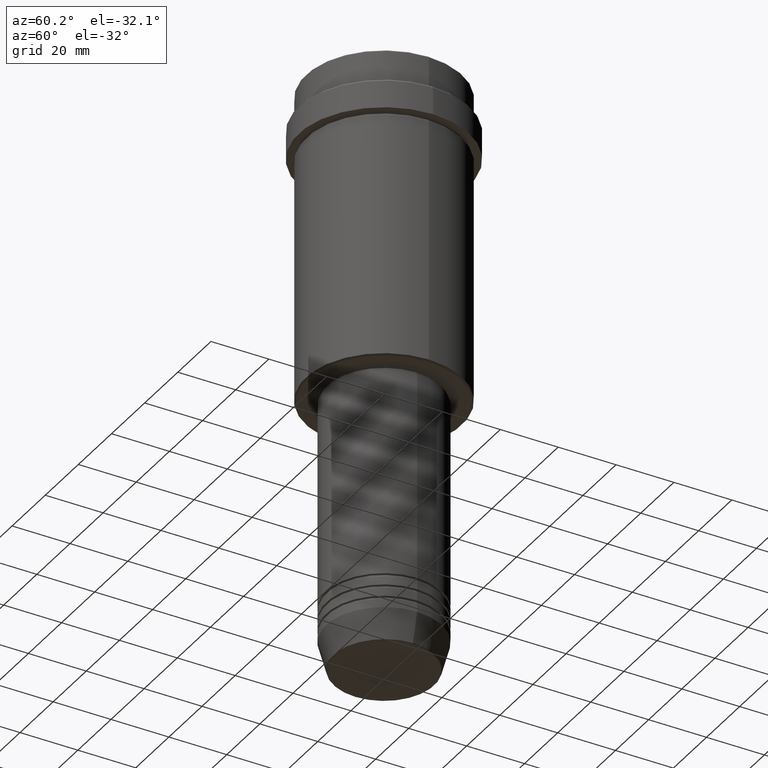
[diagram: clean part render]
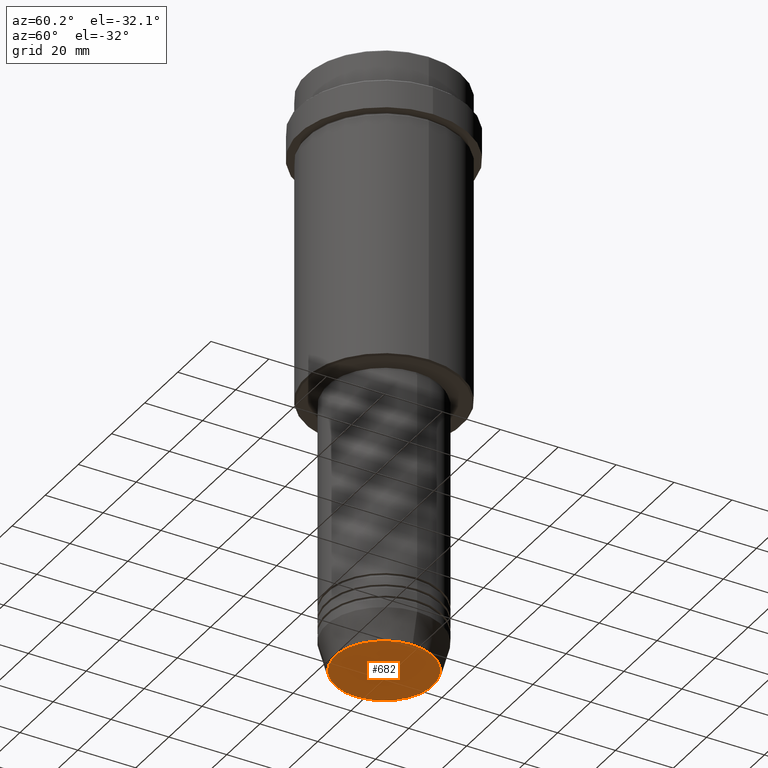
[diagram: same view with one face highlighted and labeled with its STEP entity id]
A machine part, auxiliary view. The second image highlights one B-rep face of the part: STEP entity #682.
In plain terms, the highlighted planar face has unit normal (0, -0, 1).
Its self-contained STEP definition (entity closure, byte-faithful):
#156 = CARTESIAN_POINT ( 'NONE',  ( 0.000000000000000000, 0.000000000000000000, -203.0000000000000000 ) ) ;
#273 = AXIS2_PLACEMENT_3D ( 'NONE', #156, #906, #1346 ) ;
#305 = CARTESIAN_POINT ( 'NONE',  ( 0.000000000000000000, 0.000000000000000000, -203.0000000000000000 ) ) ;
#323 = DIRECTION ( 'NONE',  ( 0.000000000000000000, -0.000000000000000000, 1.000000000000000000 ) ) ;
#338 = AXIS2_PLACEMENT_3D ( 'NONE', #305, #323, #732 ) ;
#436 = CARTESIAN_POINT ( 'NONE',  ( 0.000000000000000000, 0.000000000000000000, -203.0000000000000000 ) ) ;
#481 = EDGE_CURVE ( 'NONE', #945, #1336, #739, .T. ) ;
#513 = AXIS2_PLACEMENT_3D ( 'NONE', #436, #653, #1203 ) ;
#572 = CARTESIAN_POINT ( 'NONE',  ( 16.93684458169928675, 0.000000000000000000, -203.0000000000000000 ) ) ;
#589 = EDGE_LOOP ( 'NONE', ( #843, #1075 ) ) ;
#653 = DIRECTION ( 'NONE',  ( 0.000000000000000000, 0.000000000000000000, -1.000000000000000000 ) ) ;
#682 = ADVANCED_FACE ( 'NONE', ( #1307 ), #1407, .F. ) ;
#732 = DIRECTION ( 'NONE',  ( 1.000000000000000000, 0.000000000000000000, 0.000000000000000000 ) ) ;
#733 = CARTESIAN_POINT ( 'NONE',  ( -16.93684458169928675, 2.103738199747889592E-15, -203.0000000000000000 ) ) ;
#739 = CIRCLE ( 'NONE', #273, 16.93684458169928675 ) ;
#843 = ORIENTED_EDGE ( 'NONE', *, *, #481, .T. ) ;
#851 = EDGE_CURVE ( 'NONE', #1336, #945, #1353, .T. ) ;
#906 = DIRECTION ( 'NONE',  ( 0.000000000000000000, 0.000000000000000000, -1.000000000000000000 ) ) ;
#945 = VERTEX_POINT ( 'NONE', #572 ) ;
#1075 = ORIENTED_EDGE ( 'NONE', *, *, #851, .T. ) ;
#1203 = DIRECTION ( 'NONE',  ( 1.000000000000000000, 0.000000000000000000, 0.000000000000000000 ) ) ;
#1307 = FACE_OUTER_BOUND ( 'NONE', #589, .T. ) ;
#1336 = VERTEX_POINT ( 'NONE', #733 ) ;
#1346 = DIRECTION ( 'NONE',  ( 1.000000000000000000, 0.000000000000000000, 0.000000000000000000 ) ) ;
#1353 = CIRCLE ( 'NONE', #513, 16.93684458169928675 ) ;
#1407 = PLANE ( 'NONE',  #338 ) ;